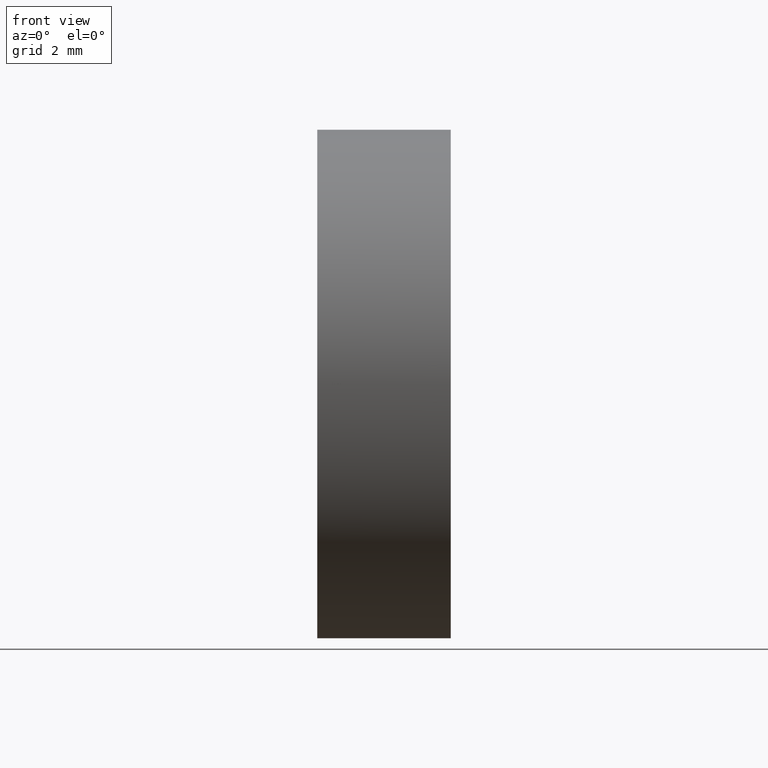
[diagram: clean part render]
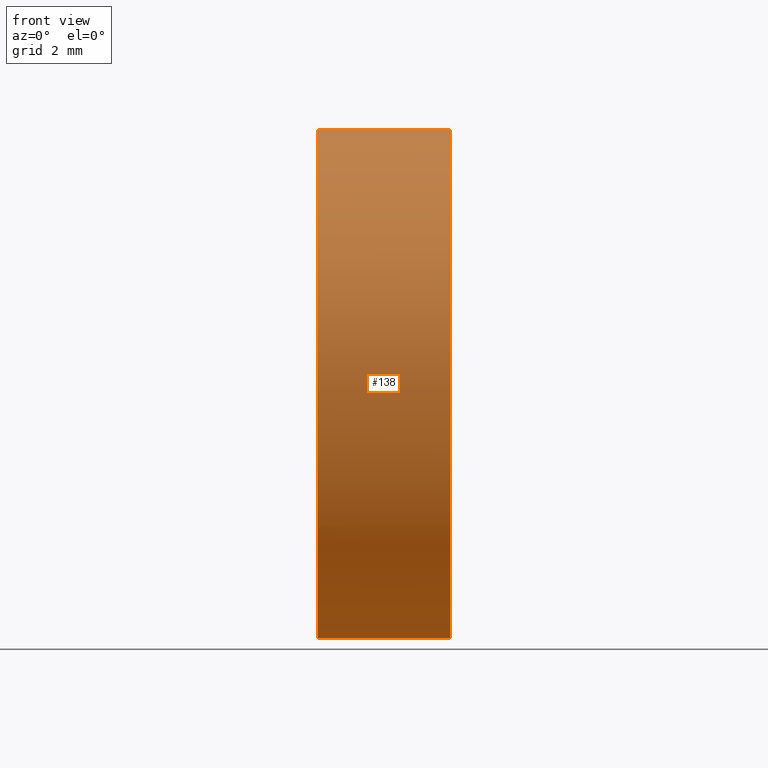
[diagram: same view with one face highlighted and labeled with its STEP entity id]
A machine part, front view. The second image highlights one B-rep face of the part: STEP entity #138.
In plain terms, the highlighted cylindrical surface (partial cylindrical patch) has radius 6.25 mm, axis along (-1, -0, -0).
Its self-contained STEP definition (entity closure, byte-faithful):
#1 = ORIENTED_EDGE ( 'NONE', *, *, #84, .T. ) ;
#5 = LINE ( 'NONE', #25, #62 ) ;
#7 = VERTEX_POINT ( 'NONE', #59 ) ;
#10 = CARTESIAN_POINT ( 'NONE',  ( 60.82590393042841700, 28.43901056168615700, -7.654042494670979300E-016 ) ) ;
#13 = DIRECTION ( 'NONE',  ( -1.000000000000000000, -0.0000000000000000000, -0.0000000000000000000 ) ) ;
#16 = CARTESIAN_POINT ( 'NONE',  ( 60.82590393042841000, 34.68901056168621700, -6.250000000000004400 ) ) ;
#17 = ORIENTED_EDGE ( 'NONE', *, *, #112, .F. ) ;
#21 = DIRECTION ( 'NONE',  ( 0.0000000000000000000, 0.0000000000000000000, 1.000000000000000000 ) ) ;
#23 = DIRECTION ( 'NONE',  ( -1.000000000000000000, -0.0000000000000000000, -0.0000000000000000000 ) ) ;
#24 = FACE_OUTER_BOUND ( 'NONE', #105, .T. ) ;
#25 = CARTESIAN_POINT ( 'NONE',  ( 54.49257150108255100, 34.68901056168621700, 6.250000000000001800 ) ) ;
#26 = LINE ( 'NONE', #107, #171 ) ;
#29 = AXIS2_PLACEMENT_3D ( 'NONE', #65, #177, #146 ) ;
#31 = CIRCLE ( 'NONE', #151, 6.249999999999998200 ) ;
#34 = CARTESIAN_POINT ( 'NONE',  ( 57.54632776745975800, 34.68901056168621700, -6.249999999999998200 ) ) ;
#37 = DIRECTION ( 'NONE',  ( 0.0000000000000000000, 0.0000000000000000000, 1.000000000000000000 ) ) ;
#39 = CIRCLE ( 'NONE', #29, 6.250000000000005300 ) ;
#46 = VERTEX_POINT ( 'NONE', #34 ) ;
#52 = AXIS2_PLACEMENT_3D ( 'NONE', #127, #13, #178 ) ;
#55 = EDGE_CURVE ( 'NONE', #182, #46, #26, .T. ) ;
#59 = CARTESIAN_POINT ( 'NONE',  ( 60.82590393042841000, 34.68901056168621700, 6.250000000000004400 ) ) ;
#60 = DIRECTION ( 'NONE',  ( -1.000000000000000000, -0.0000000000000000000, -0.0000000000000000000 ) ) ;
#62 = VECTOR ( 'NONE', #23, 1000.000000000000000 ) ;
#64 = AXIS2_PLACEMENT_3D ( 'NONE', #185, #124, #21 ) ;
#65 = CARTESIAN_POINT ( 'NONE',  ( 60.82590393042841000, 34.68901056168621700, 0.0000000000000000000 ) ) ;
#70 = EDGE_CURVE ( 'NONE', #182, #85, #152, .T. ) ;
#84 = EDGE_CURVE ( 'NONE', #7, #162, #5, .T. ) ;
#85 = VERTEX_POINT ( 'NONE', #10 ) ;
#97 = CARTESIAN_POINT ( 'NONE',  ( 57.54632776745975800, 34.68901056168621700, 0.0000000000000000000 ) ) ;
#105 = EDGE_LOOP ( 'NONE', ( #132, #163, #137, #1, #17 ) ) ;
#107 = CARTESIAN_POINT ( 'NONE',  ( 54.49257150108255100, 34.68901056168621700, -6.250000000000001800 ) ) ;
#112 = EDGE_CURVE ( 'NONE', #46, #162, #31, .T. ) ;
#124 = DIRECTION ( 'NONE',  ( -1.000000000000000000, -0.0000000000000000000, -0.0000000000000000000 ) ) ;
#127 = CARTESIAN_POINT ( 'NONE',  ( 54.49257150108255100, 34.68901056168621700, 0.0000000000000000000 ) ) ;
#132 = ORIENTED_EDGE ( 'NONE', *, *, #55, .F. ) ;
#137 = ORIENTED_EDGE ( 'NONE', *, *, #164, .T. ) ;
#138 = ADVANCED_FACE ( 'NONE', ( #24 ), #167, .T. ) ;
#146 = DIRECTION ( 'NONE',  ( 0.0000000000000000000, 0.0000000000000000000, 1.000000000000000000 ) ) ;
#147 = DIRECTION ( 'NONE',  ( -1.000000000000000000, -0.0000000000000000000, -0.0000000000000000000 ) ) ;
#151 = AXIS2_PLACEMENT_3D ( 'NONE', #97, #147, #37 ) ;
#152 = CIRCLE ( 'NONE', #64, 6.250000000000005300 ) ;
#160 = CARTESIAN_POINT ( 'NONE',  ( 57.54632776745975800, 34.68901056168621700, 6.249999999999998200 ) ) ;
#162 = VERTEX_POINT ( 'NONE', #160 ) ;
#163 = ORIENTED_EDGE ( 'NONE', *, *, #70, .T. ) ;
#164 = EDGE_CURVE ( 'NONE', #85, #7, #39, .T. ) ;
#167 = CYLINDRICAL_SURFACE ( 'NONE', #52, 6.250000000000001800 ) ;
#171 = VECTOR ( 'NONE', #60, 1000.000000000000000 ) ;
#177 = DIRECTION ( 'NONE',  ( -1.000000000000000000, -0.0000000000000000000, -0.0000000000000000000 ) ) ;
#178 = DIRECTION ( 'NONE',  ( 0.0000000000000000000, 0.0000000000000000000, 1.000000000000000000 ) ) ;
#182 = VERTEX_POINT ( 'NONE', #16 ) ;
#185 = CARTESIAN_POINT ( 'NONE',  ( 60.82590393042841000, 34.68901056168621700, 0.0000000000000000000 ) ) ;